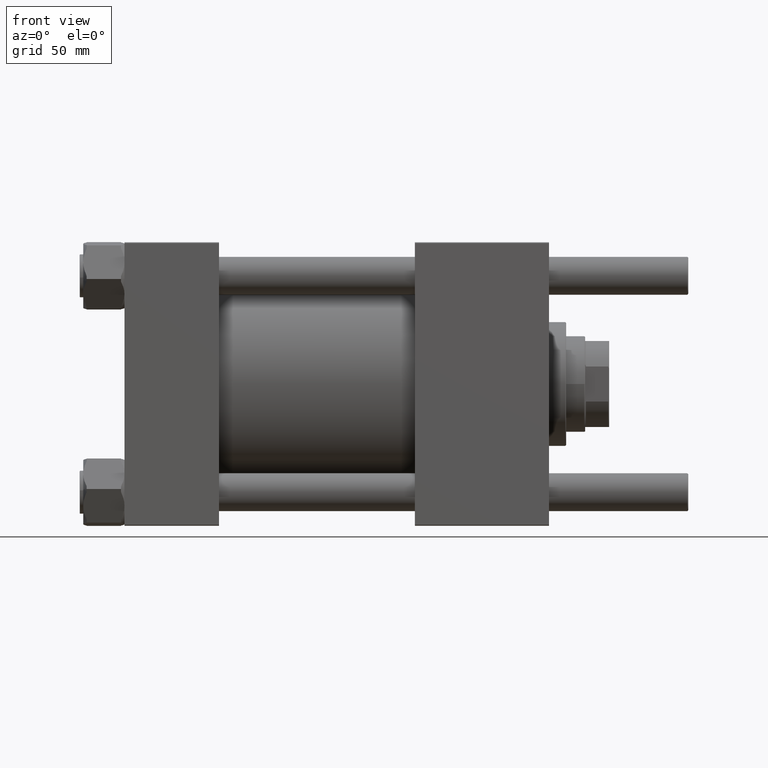
[diagram: clean part render]
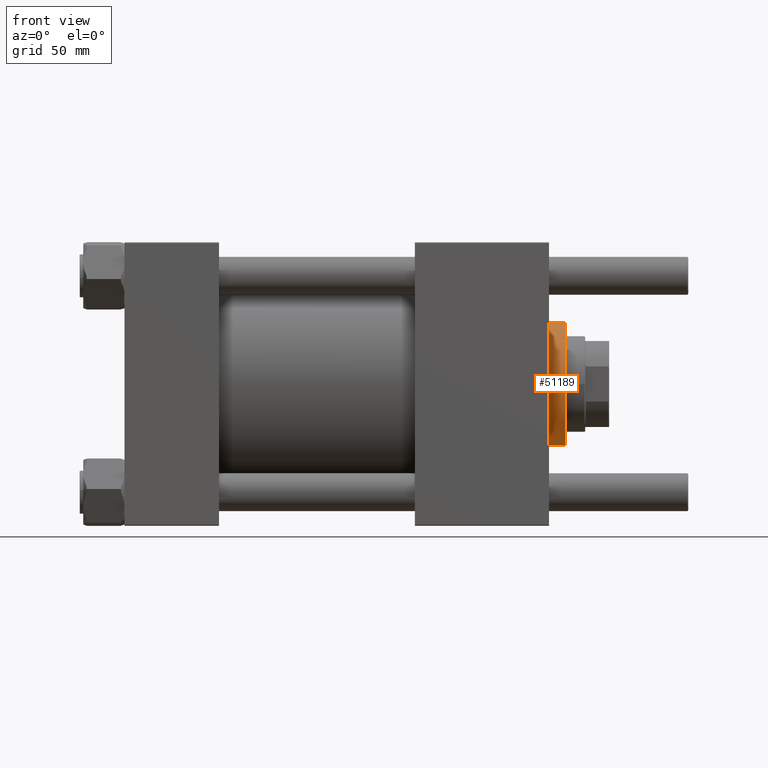
[diagram: same view with one face highlighted and labeled with its STEP entity id]
A machine part, front view. The second image highlights one B-rep face of the part: STEP entity #51189.
In plain terms, the highlighted cylindrical surface (partial cylindrical patch) has radius 36 mm, axis along (-1, -0, 0).
Its self-contained STEP definition (entity closure, byte-faithful):
#457 = CIRCLE ( 'NONE', #5990, 36.00000000000000000 ) ;
#475 = DIRECTION ( 'NONE',  ( 0.000000000000000000, 0.000000000000000000, 1.000000000000000000 ) ) ;
#2015 = CARTESIAN_POINT ( 'NONE',  ( -36.00000000000000000, 0.000000000000000000, 38.69999999999999574 ) ) ;
#2870 = DIRECTION ( 'NONE',  ( -0.000000000000000000, -0.000000000000000000, -1.000000000000000000 ) ) ;
#4692 = ORIENTED_EDGE ( 'NONE', *, *, #43617, .T. ) ;
#5236 = VERTEX_POINT ( 'NONE', #33649 ) ;
#5990 = AXIS2_PLACEMENT_3D ( 'NONE', #52022, #20482, #16715 ) ;
#7941 = DIRECTION ( 'NONE',  ( -0.000000000000000000, -0.000000000000000000, -1.000000000000000000 ) ) ;
#8494 = CYLINDRICAL_SURFACE ( 'NONE', #30161, 36.00000000000000000 ) ;
#14816 = ORIENTED_EDGE ( 'NONE', *, *, #31746, .T. ) ;
#15901 = LINE ( 'NONE', #2015, #51501 ) ;
#16439 = AXIS2_PLACEMENT_3D ( 'NONE', #52884, #475, #18149 ) ;
#16715 = DIRECTION ( 'NONE',  ( 1.000000000000000000, 0.000000000000000000, 0.000000000000000000 ) ) ;
#16955 = VERTEX_POINT ( 'NONE', #46914 ) ;
#18149 = DIRECTION ( 'NONE',  ( 1.000000000000000000, 0.000000000000000000, 0.000000000000000000 ) ) ;
#19984 = VERTEX_POINT ( 'NONE', #26778 ) ;
#20482 = DIRECTION ( 'NONE',  ( 0.000000000000000000, 0.000000000000000000, -1.000000000000000000 ) ) ;
#22107 = EDGE_CURVE ( 'NONE', #19984, #31848, #53097, .T. ) ;
#23355 = ORIENTED_EDGE ( 'NONE', *, *, #57163, .T. ) ;
#26778 = CARTESIAN_POINT ( 'NONE',  ( 36.00000000000000000, 4.408728476930470856E-15, 38.20000000000001705 ) ) ;
#27021 = DIRECTION ( 'NONE',  ( -0.000000000000000000, -0.000000000000000000, -1.000000000000000000 ) ) ;
#27303 = DIRECTION ( 'NONE',  ( -1.000000000000000000, 0.000000000000000000, 0.000000000000000000 ) ) ;
#30161 = AXIS2_PLACEMENT_3D ( 'NONE', #48144, #27021, #27303 ) ;
#31746 = EDGE_CURVE ( 'NONE', #5236, #16955, #15901, .T. ) ;
#31848 = VERTEX_POINT ( 'NONE', #39321 ) ;
#33649 = CARTESIAN_POINT ( 'NONE',  ( -36.00000000000000000, 0.000000000000000000, 38.20000000000001705 ) ) ;
#35855 = CIRCLE ( 'NONE', #16439, 36.00000000000000000 ) ;
#37487 = ORIENTED_EDGE ( 'NONE', *, *, #22107, .F. ) ;
#39321 = CARTESIAN_POINT ( 'NONE',  ( 36.00000000000000000, 4.408728476930470856E-15, 28.69999999999999929 ) ) ;
#43617 = EDGE_CURVE ( 'NONE', #19984, #5236, #457, .T. ) ;
#46914 = CARTESIAN_POINT ( 'NONE',  ( -36.00000000000000000, 0.000000000000000000, 28.69999999999999929 ) ) ;
#48144 = CARTESIAN_POINT ( 'NONE',  ( 0.000000000000000000, 0.000000000000000000, 38.69999999999999574 ) ) ;
#51189 = ADVANCED_FACE ( 'NONE', ( #57127 ), #8494, .T. ) ;
#51232 = EDGE_LOOP ( 'NONE', ( #37487, #4692, #14816, #23355 ) ) ;
#51501 = VECTOR ( 'NONE', #2870, 1000.000000000000000 ) ;
#52022 = CARTESIAN_POINT ( 'NONE',  ( 0.000000000000000000, 0.000000000000000000, 38.20000000000001705 ) ) ;
#52530 = CARTESIAN_POINT ( 'NONE',  ( 36.00000000000000000, 4.408728476930470856E-15, 38.69999999999999574 ) ) ;
#52884 = CARTESIAN_POINT ( 'NONE',  ( 0.000000000000000000, 0.000000000000000000, 28.69999999999999929 ) ) ;
#53097 = LINE ( 'NONE', #52530, #53942 ) ;
#53942 = VECTOR ( 'NONE', #7941, 1000.000000000000000 ) ;
#57127 = FACE_OUTER_BOUND ( 'NONE', #51232, .T. ) ;
#57163 = EDGE_CURVE ( 'NONE', #16955, #31848, #35855, .T. ) ;